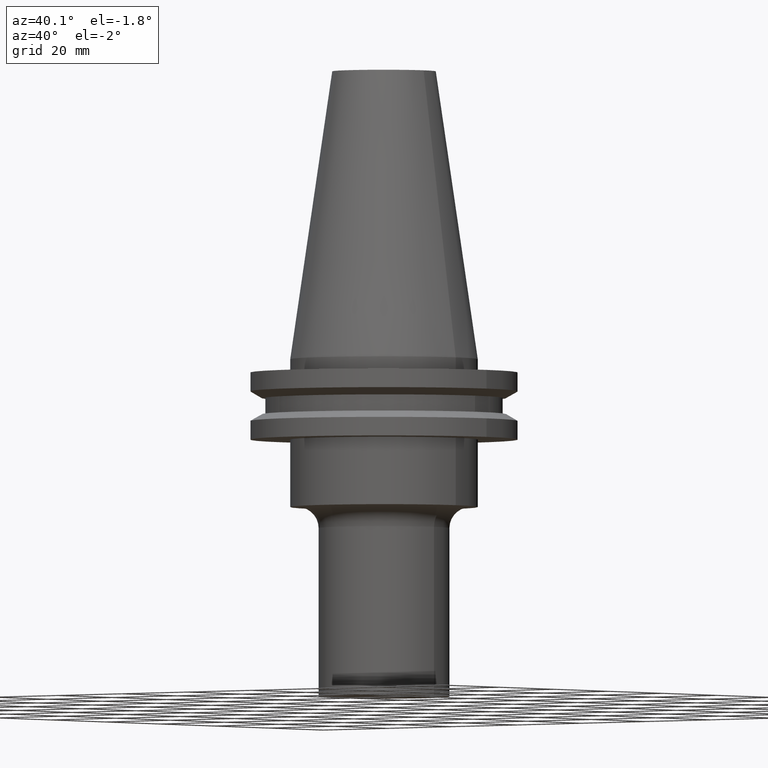
[diagram: clean part render]
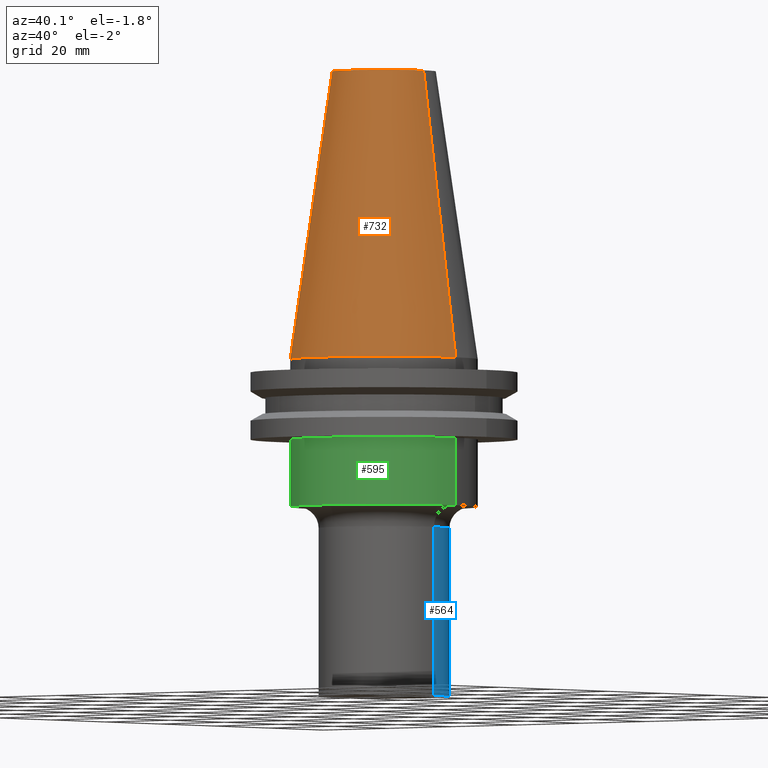
[diagram: same view with three faces highlighted in distinct colors, each labeled with its STEP entity id]
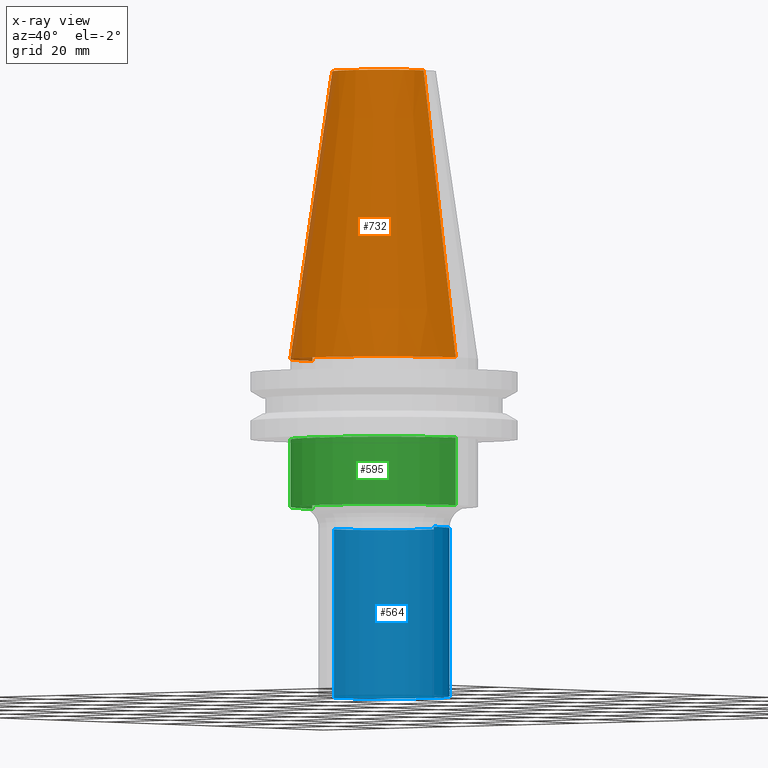
[diagram: x-ray of the same camera — body ghosted, the three highlighted faces saturated]
A machine part, auxiliary view with three faces highlighted in distinct colors.
The next image is the same camera in x-ray (body ghosted, the three faces saturated) — at least one of them is partly hidden behind the body in this view.
Their STEP definitions:

[orange] entity #732 — the highlighted conical surface has half-angle 8.297 deg.
#14 = EDGE_CURVE ( 'NONE', #651, #525, #542, .T. ) ;
#42 = EDGE_CURVE ( 'NONE', #525, #638, #344, .T. ) ;
#60 = DIRECTION ( 'NONE',  ( -0.000000000000000000, -0.000000000000000000, 1.000000000000000000 ) ) ;
#80 = CARTESIAN_POINT ( 'NONE',  ( 22.22500000000000142, 2.721777511104992849E-15, 0.000000000000000000 ) ) ;
#97 = AXIS2_PLACEMENT_3D ( 'NONE', #509, #743, #686 ) ;
#116 = DIRECTION ( 'NONE',  ( 1.000000000000000000, 0.000000000000000000, 0.000000000000000000 ) ) ;
#139 = VECTOR ( 'NONE', #305, 999.9999999999998863 ) ;
#165 = EDGE_CURVE ( 'NONE', #651, #462, #674, .T. ) ;
#248 = CARTESIAN_POINT ( 'NONE',  ( 0.000000000000000000, 0.000000000000000000, 0.000000000000000000 ) ) ;
#282 = EDGE_LOOP ( 'NONE', ( #630, #597, #294, #746 ) ) ;
#294 = ORIENTED_EDGE ( 'NONE', *, *, #14, .T. ) ;
#305 = DIRECTION ( 'NONE',  ( -0.1443082272672999711, 0.000000000000000000, -0.9895327864921755756 ) ) ;
#308 = EDGE_CURVE ( 'NONE', #462, #638, #349, .T. ) ;
#321 = CONICAL_SURFACE ( 'NONE', #97, 22.22500000000000142, 0.1448138465474119174 ) ;
#339 = CARTESIAN_POINT ( 'NONE',  ( 22.22500000000000142, 2.721777511104992849E-15, 0.000000000000000000 ) ) ;
#344 = CIRCLE ( 'NONE', #440, 22.22500000000000142 ) ;
#349 = LINE ( 'NONE', #339, #756 ) ;
#382 = DIRECTION ( 'NONE',  ( 1.000000000000000000, 0.000000000000000000, 0.000000000000000000 ) ) ;
#401 = AXIS2_PLACEMENT_3D ( 'NONE', #692, #510, #382 ) ;
#440 = AXIS2_PLACEMENT_3D ( 'NONE', #248, #60, #116 ) ;
#462 = VERTEX_POINT ( 'NONE', #609 ) ;
#509 = CARTESIAN_POINT ( 'NONE',  ( 0.000000000000000000, 0.000000000000000000, 0.000000000000000000 ) ) ;
#510 = DIRECTION ( 'NONE',  ( -0.000000000000000000, -0.000000000000000000, 1.000000000000000000 ) ) ;
#525 = VERTEX_POINT ( 'NONE', #659 ) ;
#538 = CARTESIAN_POINT ( 'NONE',  ( -22.22500000000000142, 0.000000000000000000, 0.000000000000000000 ) ) ;
#542 = LINE ( 'NONE', #538, #139 ) ;
#570 = CARTESIAN_POINT ( 'NONE',  ( -12.27178102086201150, 0.000000000000000000, 68.25000000000000000 ) ) ;
#597 = ORIENTED_EDGE ( 'NONE', *, *, #165, .F. ) ;
#609 = CARTESIAN_POINT ( 'NONE',  ( 12.27178102086201150, 2.112318622904291439E-15, 68.25000000000000000 ) ) ;
#622 = FACE_OUTER_BOUND ( 'NONE', #282, .T. ) ;
#630 = ORIENTED_EDGE ( 'NONE', *, *, #308, .F. ) ;
#638 = VERTEX_POINT ( 'NONE', #80 ) ;
#649 = DIRECTION ( 'NONE',  ( 0.1443082272672999711, 1.767266086135276757E-17, -0.9895327864921755756 ) ) ;
#651 = VERTEX_POINT ( 'NONE', #570 ) ;
#659 = CARTESIAN_POINT ( 'NONE',  ( -22.22500000000000142, 0.000000000000000000, 0.000000000000000000 ) ) ;
#674 = CIRCLE ( 'NONE', #401, 12.27178102086201150 ) ;
#686 = DIRECTION ( 'NONE',  ( -1.000000000000000000, 0.000000000000000000, 0.000000000000000000 ) ) ;
#692 = CARTESIAN_POINT ( 'NONE',  ( 0.000000000000000000, 0.000000000000000000, 68.25000000000000000 ) ) ;
#732 = ADVANCED_FACE ( 'NONE', ( #622 ), #321, .T. ) ;
#743 = DIRECTION ( 'NONE',  ( 0.000000000000000000, 0.000000000000000000, -1.000000000000000000 ) ) ;
#746 = ORIENTED_EDGE ( 'NONE', *, *, #42, .T. ) ;
#756 = VECTOR ( 'NONE', #649, 999.9999999999998863 ) ;

[blue] entity #564 — the highlighted cylindrical surface (partial cylindrical patch) has radius 15.5 mm, axis along (-0, -0, 1).
#18 = CARTESIAN_POINT ( 'NONE',  ( 0.000000000000000000, 0.000000000000000000, 0.000000000000000000 ) ) ;
#34 = CARTESIAN_POINT ( 'NONE',  ( 0.000000000000000000, 0.000000000000000000, -40.04999999999999005 ) ) ;
#88 = DIRECTION ( 'NONE',  ( 1.000000000000000000, 0.000000000000000000, 0.000000000000000000 ) ) ;
#103 = VERTEX_POINT ( 'NONE', #665 ) ;
#105 = VERTEX_POINT ( 'NONE', #336 ) ;
#152 = EDGE_CURVE ( 'NONE', #334, #105, #557, .T. ) ;
#159 = ORIENTED_EDGE ( 'NONE', *, *, #152, .F. ) ;
#185 = AXIS2_PLACEMENT_3D ( 'NONE', #18, #436, #438 ) ;
#198 = CYLINDRICAL_SURFACE ( 'NONE', #185, 15.50000000000000000 ) ;
#203 = LINE ( 'NONE', #749, #603 ) ;
#237 = CARTESIAN_POINT ( 'NONE',  ( 15.50000000000000000, 0.000000000000000000, -80.00000000000000000 ) ) ;
#249 = CIRCLE ( 'NONE', #693, 15.50000000000000000 ) ;
#251 = EDGE_CURVE ( 'NONE', #105, #103, #439, .T. ) ;
#266 = AXIS2_PLACEMENT_3D ( 'NONE', #34, #731, #88 ) ;
#313 = CARTESIAN_POINT ( 'NONE',  ( 15.50000000000000000, 0.000000000000000000, 0.000000000000000000 ) ) ;
#330 = CARTESIAN_POINT ( 'NONE',  ( 0.000000000000000000, 0.000000000000000000, -80.00000000000000000 ) ) ;
#334 = VERTEX_POINT ( 'NONE', #237 ) ;
#336 = CARTESIAN_POINT ( 'NONE',  ( 15.50000000000000000, 0.000000000000000000, -40.04999999999999005 ) ) ;
#342 = ORIENTED_EDGE ( 'NONE', *, *, #625, .T. ) ;
#391 = DIRECTION ( 'NONE',  ( -0.000000000000000000, -0.000000000000000000, 1.000000000000000000 ) ) ;
#433 = FACE_OUTER_BOUND ( 'NONE', #711, .T. ) ;
#436 = DIRECTION ( 'NONE',  ( -0.000000000000000000, -0.000000000000000000, 1.000000000000000000 ) ) ;
#438 = DIRECTION ( 'NONE',  ( 1.000000000000000000, 0.000000000000000000, 0.000000000000000000 ) ) ;
#439 = CIRCLE ( 'NONE', #266, 15.50000000000000000 ) ;
#490 = ORIENTED_EDGE ( 'NONE', *, *, #687, .T. ) ;
#505 = DIRECTION ( 'NONE',  ( -0.000000000000000000, -0.000000000000000000, 1.000000000000000000 ) ) ;
#535 = ORIENTED_EDGE ( 'NONE', *, *, #251, .F. ) ;
#557 = LINE ( 'NONE', #313, #741 ) ;
#564 = ADVANCED_FACE ( 'NONE', ( #433 ), #198, .T. ) ;
#571 = DIRECTION ( 'NONE',  ( -0.000000000000000000, -0.000000000000000000, 1.000000000000000000 ) ) ;
#603 = VECTOR ( 'NONE', #505, 1000.000000000000000 ) ;
#625 = EDGE_CURVE ( 'NONE', #334, #707, #249, .T. ) ;
#665 = CARTESIAN_POINT ( 'NONE',  ( -15.50000000000000000, 1.898202538678397557E-15, -40.04999999999999005 ) ) ;
#687 = EDGE_CURVE ( 'NONE', #707, #103, #203, .T. ) ;
#691 = DIRECTION ( 'NONE',  ( 1.000000000000000000, 0.000000000000000000, 0.000000000000000000 ) ) ;
#693 = AXIS2_PLACEMENT_3D ( 'NONE', #330, #391, #691 ) ;
#707 = VERTEX_POINT ( 'NONE', #736 ) ;
#711 = EDGE_LOOP ( 'NONE', ( #342, #490, #535, #159 ) ) ;
#731 = DIRECTION ( 'NONE',  ( -0.000000000000000000, -0.000000000000000000, 1.000000000000000000 ) ) ;
#736 = CARTESIAN_POINT ( 'NONE',  ( -15.50000000000000000, 1.898202538678397557E-15, -80.00000000000000000 ) ) ;
#741 = VECTOR ( 'NONE', #571, 1000.000000000000000 ) ;
#749 = CARTESIAN_POINT ( 'NONE',  ( -15.50000000000000000, 1.898202538678397557E-15, 0.000000000000000000 ) ) ;

[green] entity #595 — the highlighted cylindrical surface (partial cylindrical patch) has radius 22.225 mm, axis along (-0, -0, 1).
#8 = CIRCLE ( 'NONE', #79, 22.22500000000000142 ) ;
#12 = CARTESIAN_POINT ( 'NONE',  ( 22.22500000000000142, 0.000000000000000000, -35.04999999999999716 ) ) ;
#13 = CARTESIAN_POINT ( 'NONE',  ( 0.000000000000000000, 0.000000000000000000, -35.04999999999999716 ) ) ;
#25 = CARTESIAN_POINT ( 'NONE',  ( 22.22500000000000142, 0.000000000000000000, -19.04999999999999716 ) ) ;
#27 = VECTOR ( 'NONE', #87, 1000.000000000000000 ) ;
#36 = CARTESIAN_POINT ( 'NONE',  ( -22.22500000000000142, 2.721777511104992849E-15, -35.04999999999999716 ) ) ;
#40 = ORIENTED_EDGE ( 'NONE', *, *, #71, .F. ) ;
#62 = DIRECTION ( 'NONE',  ( -0.000000000000000000, -0.000000000000000000, 1.000000000000000000 ) ) ;
#71 = EDGE_CURVE ( 'NONE', #403, #410, #8, .T. ) ;
#79 = AXIS2_PLACEMENT_3D ( 'NONE', #297, #424, #766 ) ;
#85 = CARTESIAN_POINT ( 'NONE',  ( -22.22500000000000142, 2.721777511104992849E-15, -19.04999999999999716 ) ) ;
#87 = DIRECTION ( 'NONE',  ( -0.000000000000000000, -0.000000000000000000, 1.000000000000000000 ) ) ;
#146 = LINE ( 'NONE', #737, #363 ) ;
#226 = VERTEX_POINT ( 'NONE', #12 ) ;
#255 = DIRECTION ( 'NONE',  ( 1.000000000000000000, 0.000000000000000000, 0.000000000000000000 ) ) ;
#297 = CARTESIAN_POINT ( 'NONE',  ( 0.000000000000000000, 0.000000000000000000, -19.04999999999999716 ) ) ;
#310 = DIRECTION ( 'NONE',  ( 1.000000000000000000, 0.000000000000000000, 0.000000000000000000 ) ) ;
#327 = LINE ( 'NONE', #627, #27 ) ;
#332 = DIRECTION ( 'NONE',  ( -0.000000000000000000, -0.000000000000000000, 1.000000000000000000 ) ) ;
#363 = VECTOR ( 'NONE', #332, 1000.000000000000000 ) ;
#364 = ORIENTED_EDGE ( 'NONE', *, *, #637, .T. ) ;
#369 = CARTESIAN_POINT ( 'NONE',  ( 0.000000000000000000, 0.000000000000000000, 68.25000000000000000 ) ) ;
#403 = VERTEX_POINT ( 'NONE', #85 ) ;
#410 = VERTEX_POINT ( 'NONE', #25 ) ;
#414 = EDGE_CURVE ( 'NONE', #450, #403, #146, .T. ) ;
#423 = CIRCLE ( 'NONE', #548, 22.22500000000000142 ) ;
#424 = DIRECTION ( 'NONE',  ( -0.000000000000000000, -0.000000000000000000, 1.000000000000000000 ) ) ;
#426 = CYLINDRICAL_SURFACE ( 'NONE', #460, 22.22500000000000142 ) ;
#450 = VERTEX_POINT ( 'NONE', #36 ) ;
#460 = AXIS2_PLACEMENT_3D ( 'NONE', #369, #62, #310 ) ;
#473 = EDGE_CURVE ( 'NONE', #450, #226, #423, .T. ) ;
#548 = AXIS2_PLACEMENT_3D ( 'NONE', #13, #605, #255 ) ;
#595 = ADVANCED_FACE ( 'NONE', ( #720 ), #426, .T. ) ;
#605 = DIRECTION ( 'NONE',  ( -0.000000000000000000, -0.000000000000000000, 1.000000000000000000 ) ) ;
#627 = CARTESIAN_POINT ( 'NONE',  ( 22.22500000000000142, 0.000000000000000000, 68.25000000000000000 ) ) ;
#637 = EDGE_CURVE ( 'NONE', #226, #410, #327, .T. ) ;
#639 = EDGE_LOOP ( 'NONE', ( #762, #661, #364, #40 ) ) ;
#661 = ORIENTED_EDGE ( 'NONE', *, *, #473, .T. ) ;
#720 = FACE_OUTER_BOUND ( 'NONE', #639, .T. ) ;
#737 = CARTESIAN_POINT ( 'NONE',  ( -22.22500000000000142, 2.721777511104992849E-15, 68.25000000000000000 ) ) ;
#762 = ORIENTED_EDGE ( 'NONE', *, *, #414, .F. ) ;
#766 = DIRECTION ( 'NONE',  ( 1.000000000000000000, 0.000000000000000000, 0.000000000000000000 ) ) ;